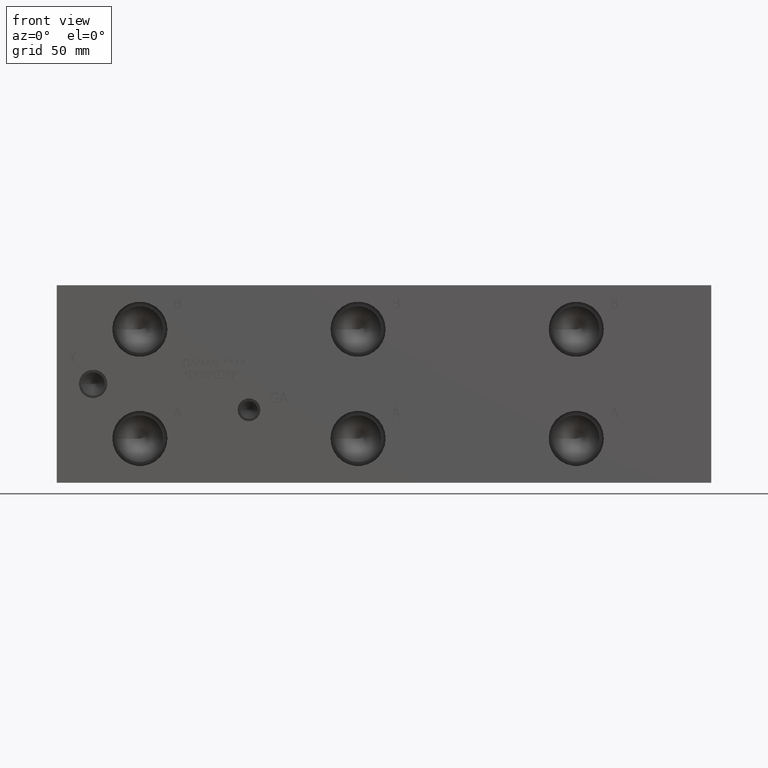
[diagram: clean part render]
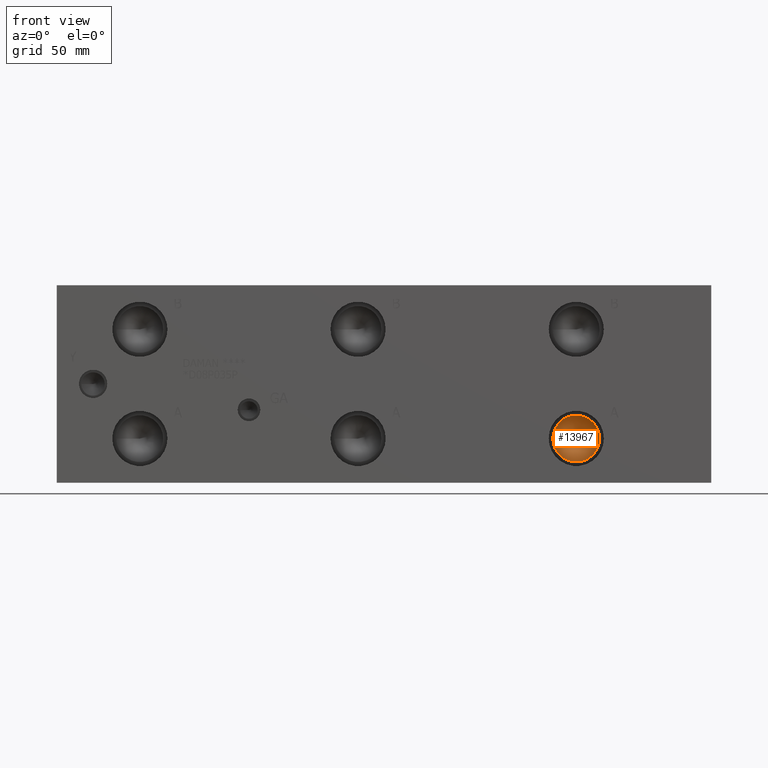
[diagram: same view with one face highlighted and labeled with its STEP entity id]
A machine part, front view. The second image highlights one B-rep face of the part: STEP entity #13967.
In plain terms, the highlighted conical surface has half-angle 60 deg.
Its self-contained STEP definition (entity closure, byte-faithful):
#128=CONICAL_SURFACE('',#14655,7.14375,1.0471975511966);
#472=CIRCLE('',#14656,14.2875);
#473=CIRCLE('',#14657,14.2875);
#1785=FACE_OUTER_BOUND('',#2595,.T.);
#2595=EDGE_LOOP('',(#11810,#11811,#11812,#11813));
#3925=LINE('',#23685,#5174);
#5174=VECTOR('',#17248,7.14375);
#6385=VERTEX_POINT('',#23681);
#6386=VERTEX_POINT('',#23682);
#6387=VERTEX_POINT('',#23684);
#8267=EDGE_CURVE('',#6385,#6386,#472,.T.);
#8268=EDGE_CURVE('',#6386,#6387,#3925,.T.);
#8269=EDGE_CURVE('',#6386,#6385,#473,.T.);
#11810=ORIENTED_EDGE('',*,*,#8267,.T.);
#11811=ORIENTED_EDGE('',*,*,#8268,.T.);
#11812=ORIENTED_EDGE('',*,*,#8268,.F.);
#11813=ORIENTED_EDGE('',*,*,#8269,.T.);
#13967=ADVANCED_FACE('',(#1785),#128,.F.);
#14655=AXIS2_PLACEMENT_3D('',#23680,#17244,#17245);
#14656=AXIS2_PLACEMENT_3D('',#23683,#17246,#17247);
#14657=AXIS2_PLACEMENT_3D('',#23686,#17249,#17250);
#17244=DIRECTION('center_axis',(0.,-1.,0.));
#17245=DIRECTION('ref_axis',(1.,0.,0.));
#17246=DIRECTION('center_axis',(0.,-1.,0.));
#17247=DIRECTION('ref_axis',(1.,0.,0.));
#17248=DIRECTION('',(0.866025403784438,0.5,1.06057523872491E-16));
#17249=DIRECTION('center_axis',(0.,-1.,0.));
#17250=DIRECTION('ref_axis',(1.,0.,0.));
#23680=CARTESIAN_POINT('Origin',(317.5,23.9485359855234,26.9748));
#23681=CARTESIAN_POINT('',(331.7875,19.82409,26.9748));
#23682=CARTESIAN_POINT('',(303.2125,19.82409,26.9748));
#23683=CARTESIAN_POINT('Origin',(317.5,19.82409,26.9748));
#23684=CARTESIAN_POINT('',(317.5,28.0729819710468,26.9748));
#23685=CARTESIAN_POINT('',(310.35625,23.9485359855234,26.9748));
#23686=CARTESIAN_POINT('Origin',(317.5,19.82409,26.9748));